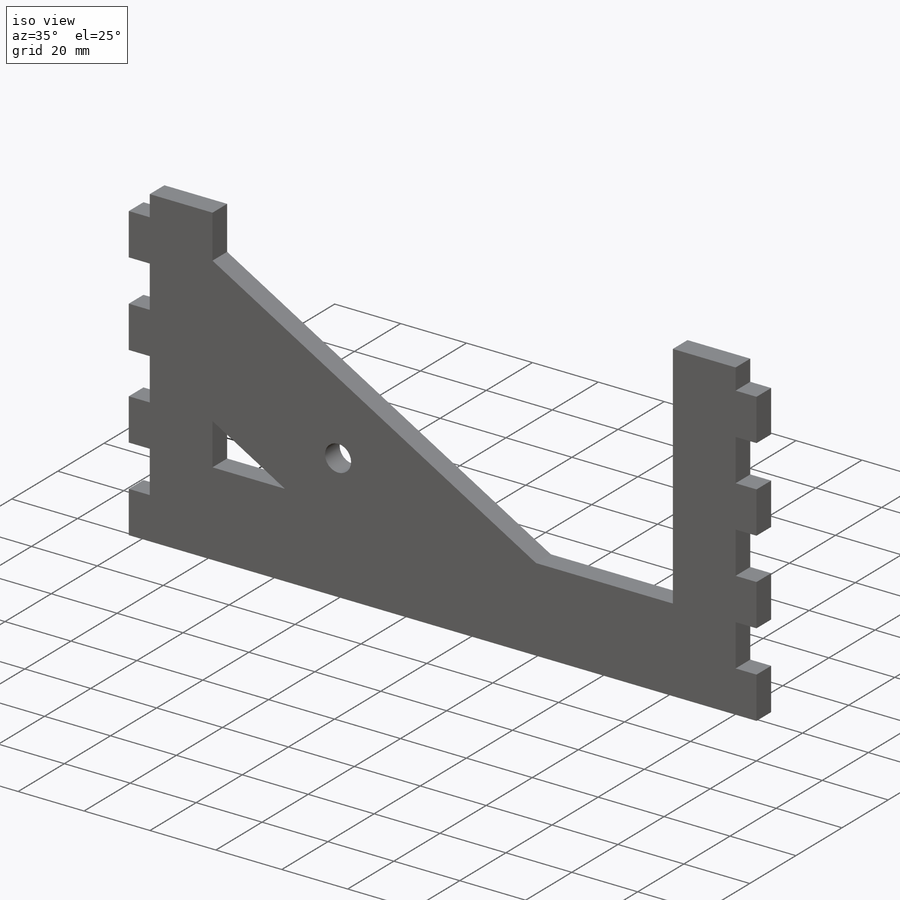
[diagram: iso view]
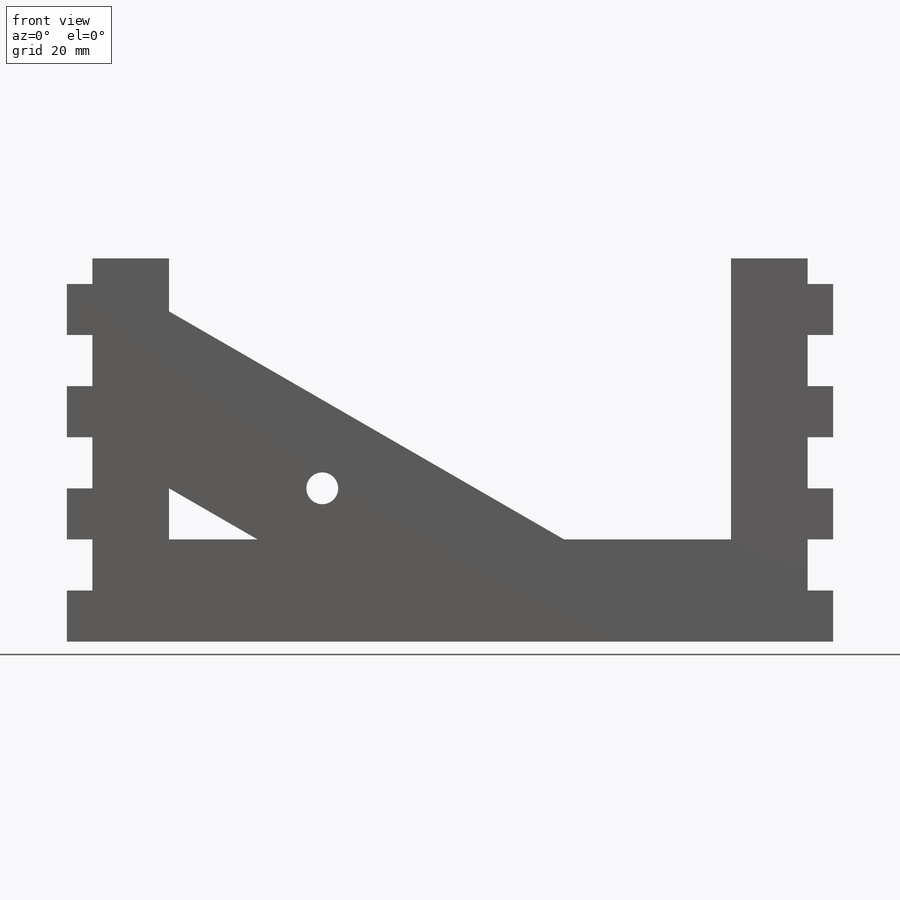
[diagram: front view]
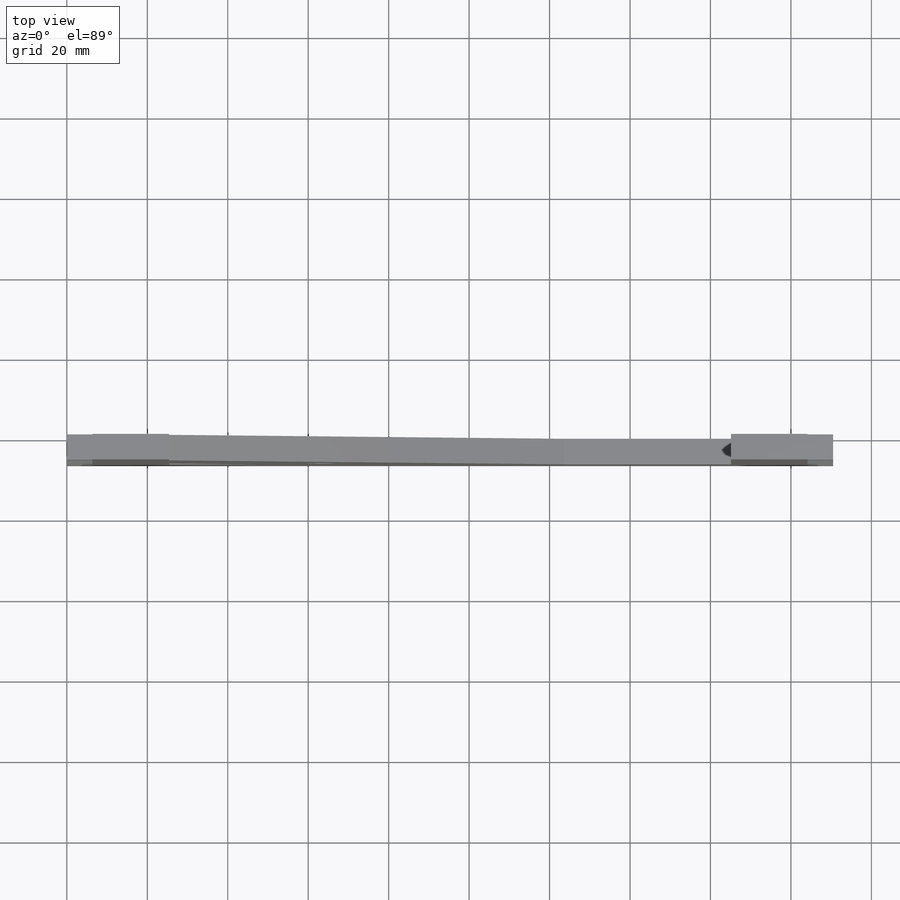
[diagram: top view]
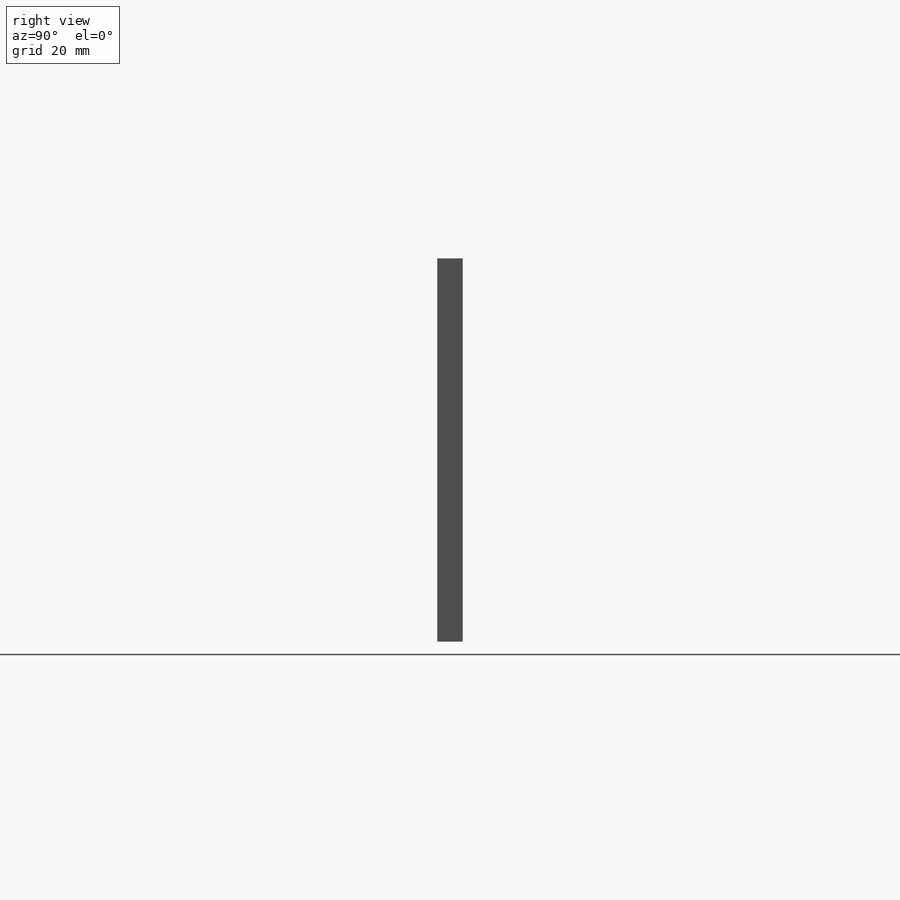
[diagram: right view]
SOLIDWORKS PART (.sldprt)
format: sldprt  version: not decoded by parser v0  size: 244,224 bytes
history: native  units: mm
features: sketch x5, cut_extrude x4, material x1, extrude x1, pattern_linear x1 (+13 scaffold rows collapsed)
feature tree (25):
  scaffold x13  (default folders/planes/origin — collapsed)
  material  "Pine"
  sketch  "Sketch1"  dims[D1=190.5mm D2=95.25mm]
  extrude  "Boss-Extrude1"  Depth=6.35mm
  sketch  "Sketch2"  dims[D3=7.9375mm D1=63.5mm D2=38.1mm D4=63.5mm D5=25.4mm]
  cut_extrude  "Cut-Extrude1"  [1 undecoded]
  sketch  "Sketch3"  dims[D1=6.35mm D2=12.7mm D3=12.7mm]
  cut_extrude  "Cut-Extrude2"  [1 undecoded]
  sketch  "Sketch4"
  cut_extrude  "Cut-Extrude3"  [1 undecoded]
  pattern_linear  "LPattern1"  Count1=4 Count2=1 Spacing1=25.4mm Spacing2=2.54mm
  sketch  "Sketch6"  dims[c1.D5=7.9375mm c1.D7=7.9375mm c1.D8=7.9375mm c1.D1=19.05mm c1.D2=19.05mm c1.D3=90.8516mm c2.D3=120.0deg c2.D4=25.4mm c2.D5=19.05mm c2.D6=19.05mm c2.D7=12.7mm c2.D8=12.7mm]
  cut_extrude  "Cut-Extrude4"  [1 undecoded]
decode coverage: 6 of 11 modeling features carry decoded parameters
note: 4 parameter values undecoded
summary: no parameter record found for 4 features
note: suppression state not decoded; provenance and decode notes live in map.json
